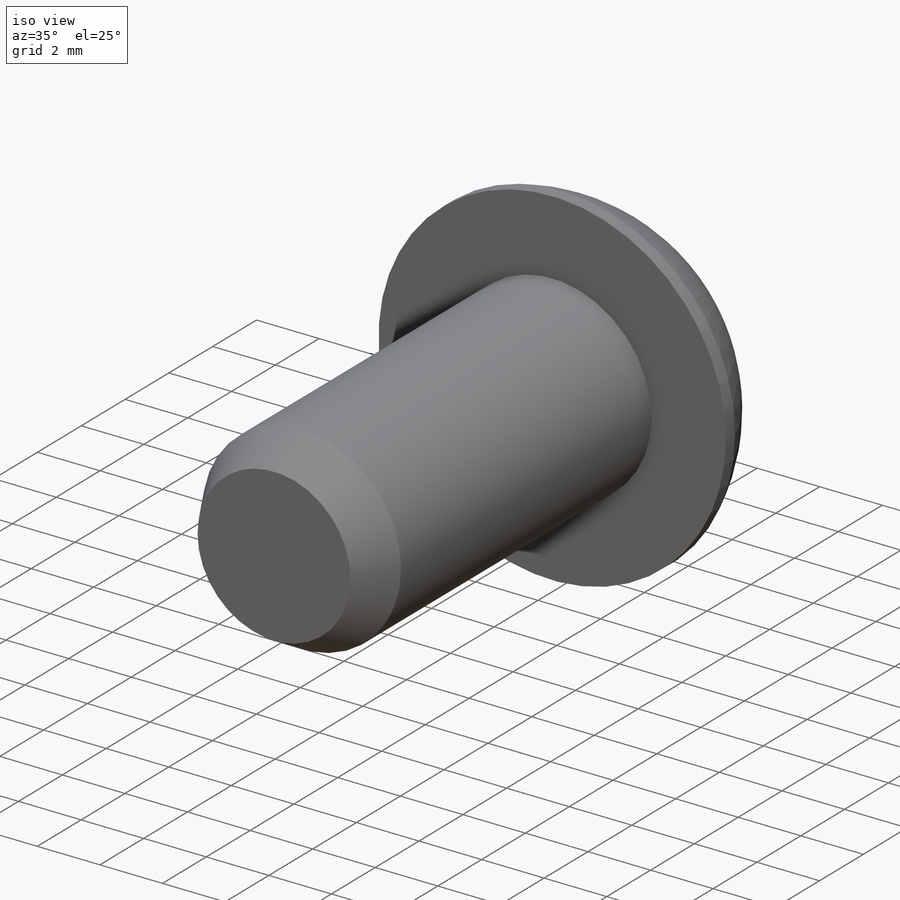
[diagram: iso view]
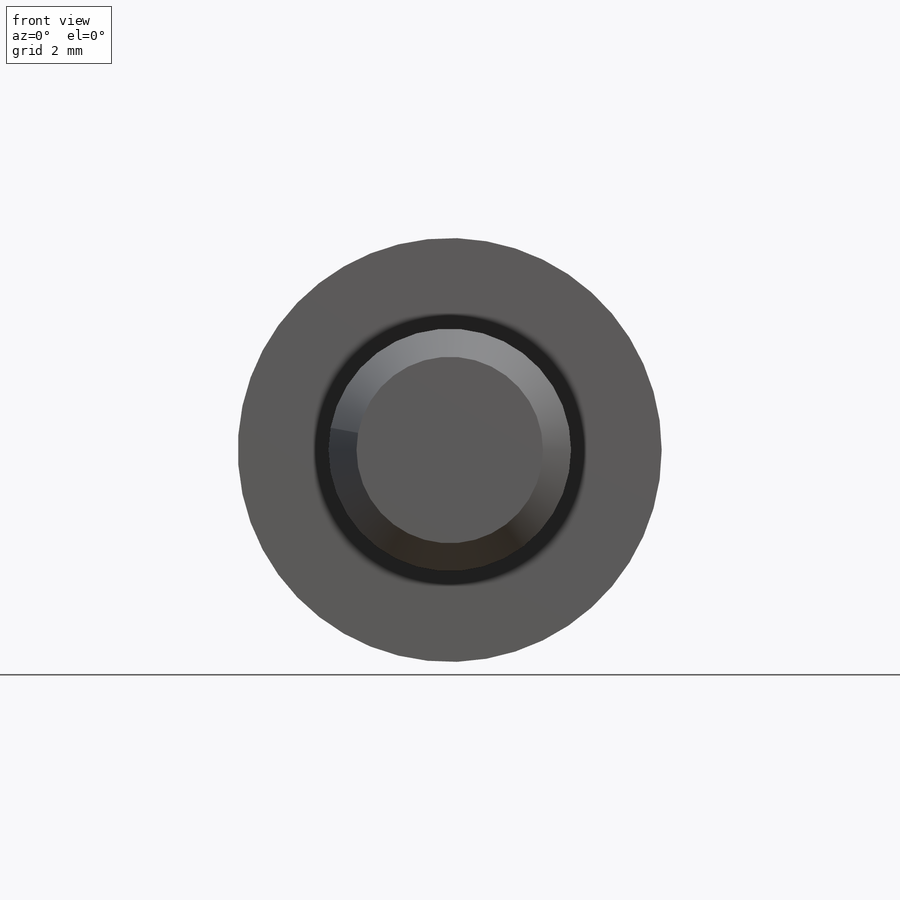
[diagram: front view]
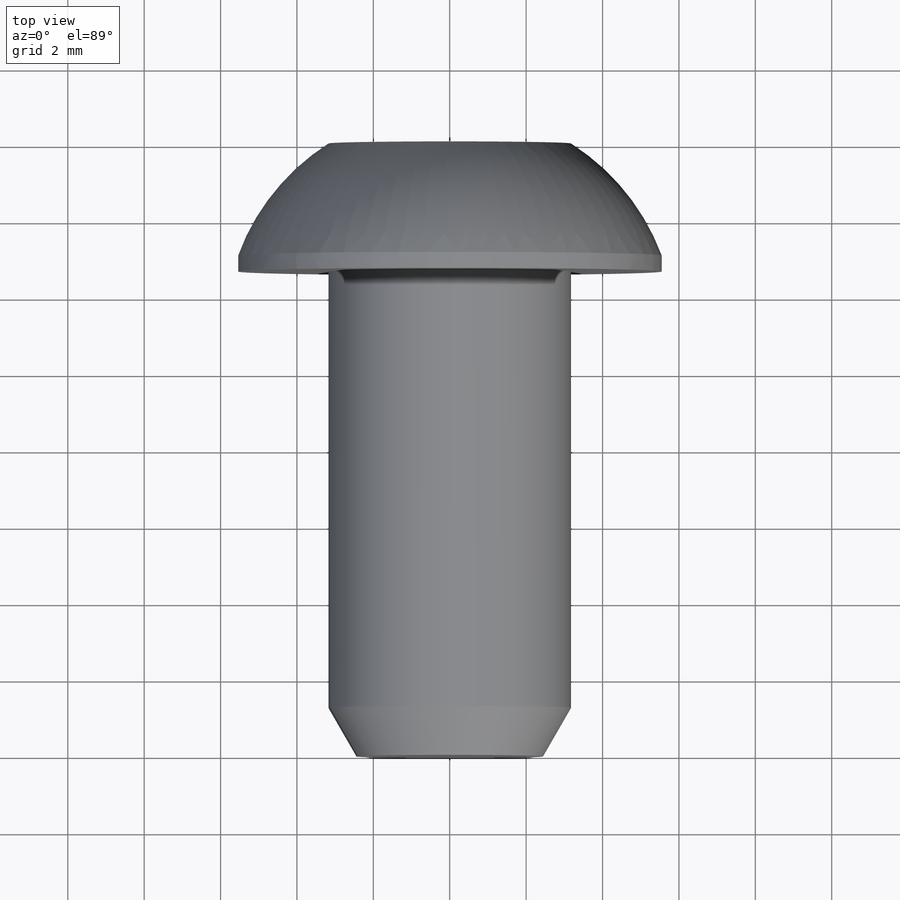
[diagram: top view]
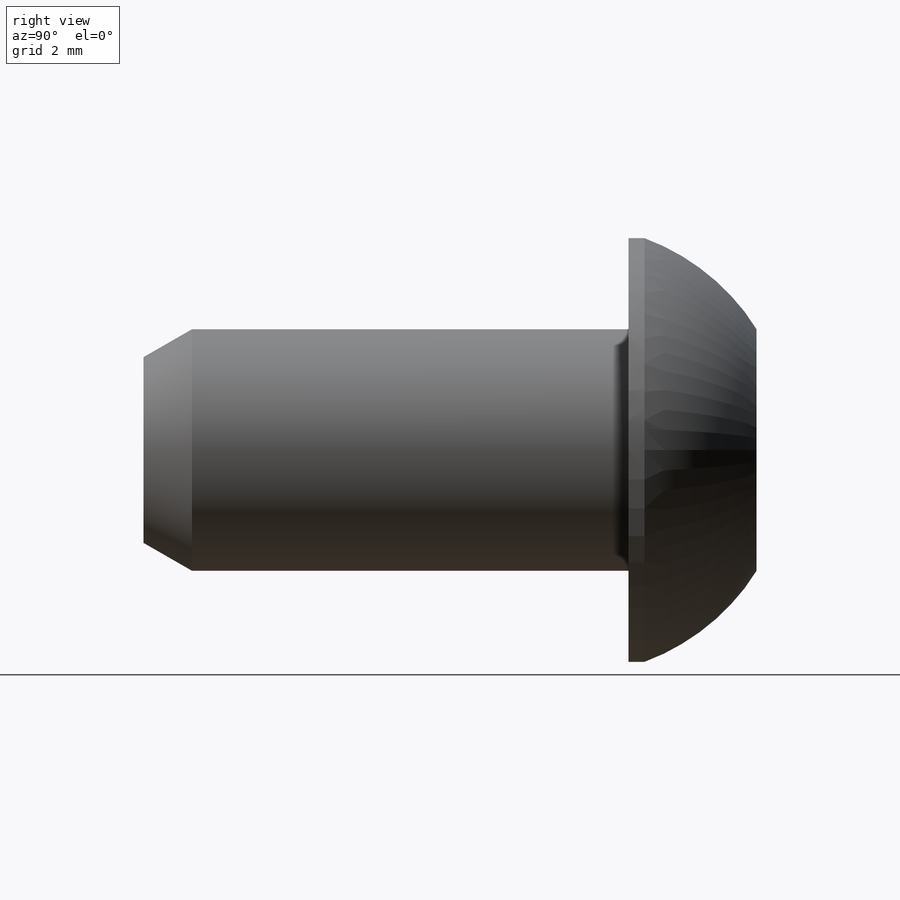
[diagram: right view]
SOLIDWORKS PART (.sldprt)
format: sldprt  version: not decoded by parser v0  size: 165,376 bytes
history: native  units: mm
features: sketch x3, material x1, revolve x1, cut_extrude x1, extrude x1, chamfer x1 (+13 scaffold rows collapsed)
feature tree (21):
  scaffold x13  (default folders/planes/origin — collapsed)
  material  "Material <not specified>"
  sketch  "Sketch1"  dims[D1=~0.804599mm D2=~0.009285mm]
  revolve  "Revolve1"  Angle=360deg
  sketch  "Sketch2"
  cut_extrude  "Cut-Extrude1"  Depth=2.2225mm
  sketch  "Sketch3"  dims[D1=6.35mm]
  extrude  "Boss-Extrude1"  Depth=12.7mm
  chamfer  "Chamfer1"  Distance=1.27mm Angle=30deg
decode coverage: 6 of 7 modeling features carry decoded parameters
note: ~ marks probable driven/reference dimensions
note: suppression state not decoded; provenance and decode notes live in map.json
